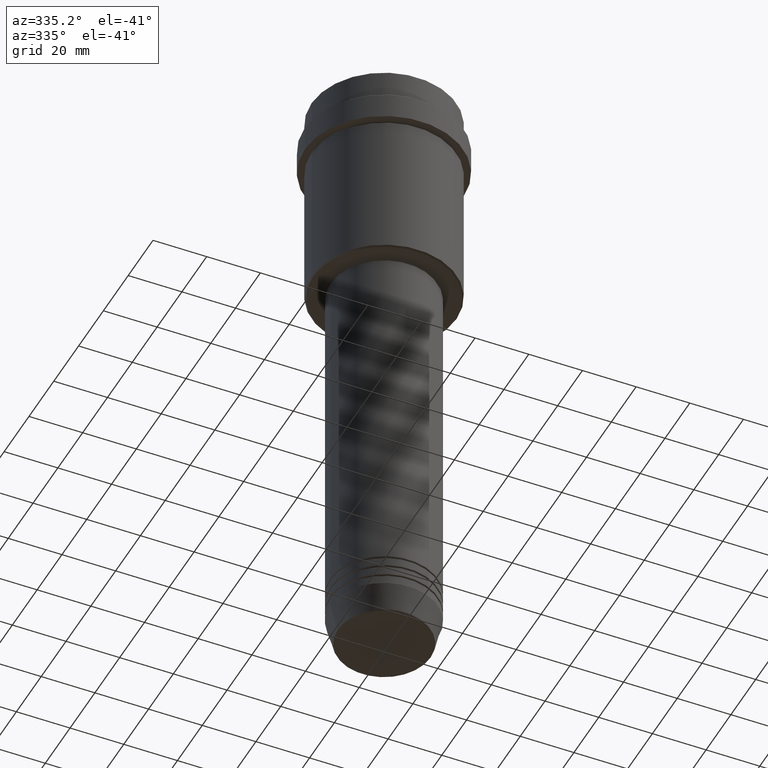
[diagram: clean part render]
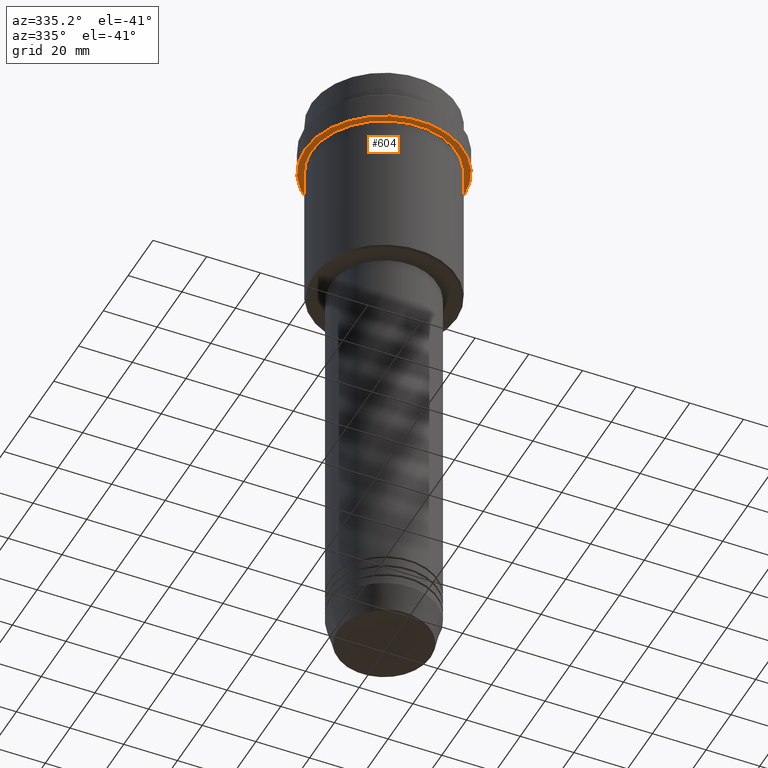
[diagram: same view with one face highlighted and labeled with its STEP entity id]
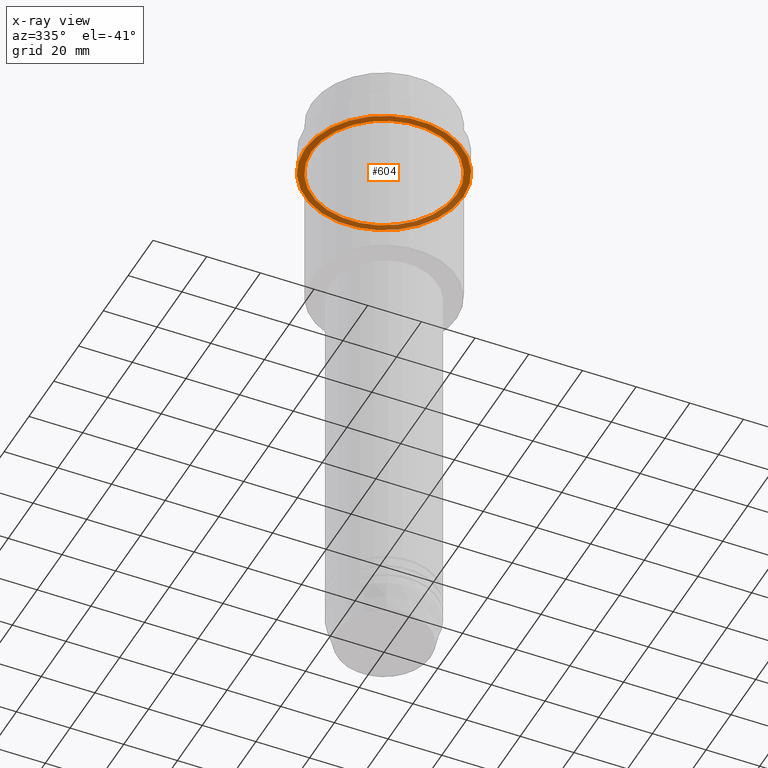
[diagram: x-ray of the same camera — body ghosted, the highlighted face saturated]
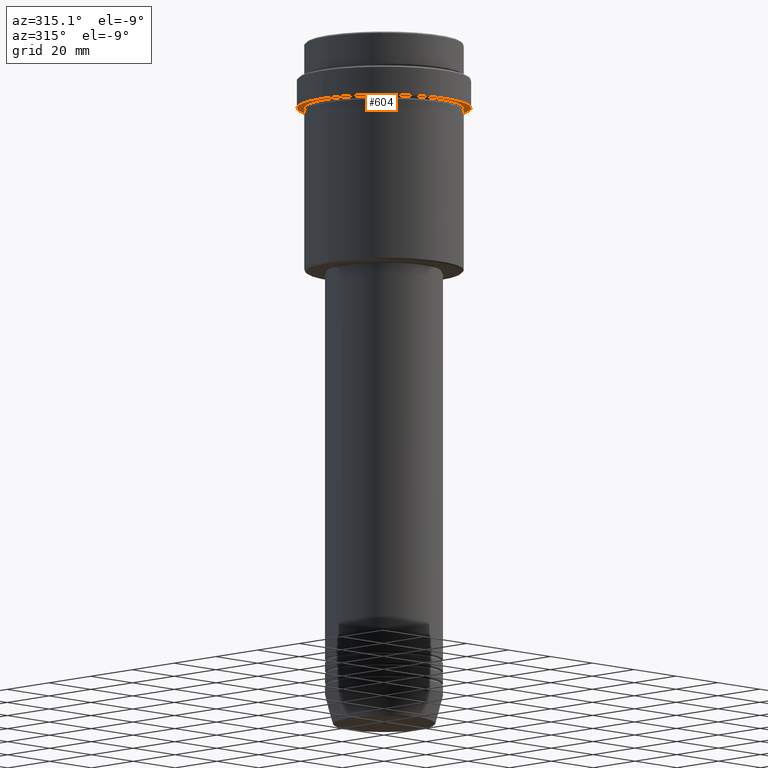
[diagram: same view with one face highlighted and labeled with its STEP entity id]
A machine part, auxiliary view. The second image highlights one B-rep face of the part: STEP entity #604.
The next image is the same camera in x-ray: the body ghosted, the highlighted face saturated — about 37% of this face is hidden behind the body in this view.
A second angle (auxiliary view) of the same face is appended — the face is thin or edge-on in the first view.
In plain terms, the highlighted planar face has unit normal (0, 0, -1).
Its self-contained STEP definition (entity closure, byte-faithful):
#8 = AXIS2_PLACEMENT_3D ( 'NONE', #640, #1086, #1385 ) ;
#113 = AXIS2_PLACEMENT_3D ( 'NONE', #932, #291, #936 ) ;
#161 = CARTESIAN_POINT ( 'NONE',  ( 0.000000000000000000, 29.49999999999999645, -22.00000000000000711 ) ) ;
#237 = EDGE_CURVE ( 'NONE', #610, #980, #528, .T. ) ;
#252 = AXIS2_PLACEMENT_3D ( 'NONE', #768, #1325, #1116 ) ;
#258 = EDGE_LOOP ( 'NONE', ( #1084, #467 ) ) ;
#268 = DIRECTION ( 'NONE',  ( -1.000000000000000000, 0.000000000000000000, -0.000000000000000000 ) ) ;
#276 = PLANE ( 'NONE',  #1405 ) ;
#291 = DIRECTION ( 'NONE',  ( -0.000000000000000000, -0.000000000000000000, 1.000000000000000000 ) ) ;
#326 = VERTEX_POINT ( 'NONE', #547 ) ;
#382 = FACE_BOUND ( 'NONE', #258, .T. ) ;
#416 = EDGE_CURVE ( 'NONE', #980, #610, #1203, .T. ) ;
#450 = VERTEX_POINT ( 'NONE', #472 ) ;
#467 = ORIENTED_EDGE ( 'NONE', *, *, #416, .T. ) ;
#472 = CARTESIAN_POINT ( 'NONE',  ( -29.49999999999999645, 3.612708057484690815E-15, -22.00000000000000711 ) ) ;
#488 = ORIENTED_EDGE ( 'NONE', *, *, #1257, .F. ) ;
#528 = CIRCLE ( 'NONE', #113, 26.99999999999999645 ) ;
#547 = CARTESIAN_POINT ( 'NONE',  ( 29.49999999999999645, 0.000000000000000000, -22.00000000000000711 ) ) ;
#604 = ADVANCED_FACE ( 'NONE', ( #382, #805 ), #276, .T. ) ;
#610 = VERTEX_POINT ( 'NONE', #703 ) ;
#613 = ORIENTED_EDGE ( 'NONE', *, *, #787, .F. ) ;
#621 = AXIS2_PLACEMENT_3D ( 'NONE', #861, #751, #853 ) ;
#624 = CIRCLE ( 'NONE', #8, 29.49999999999999645 ) ;
#640 = CARTESIAN_POINT ( 'NONE',  ( 0.000000000000000000, 0.000000000000000000, -22.00000000000000711 ) ) ;
#692 = CIRCLE ( 'NONE', #621, 29.49999999999999645 ) ;
#703 = CARTESIAN_POINT ( 'NONE',  ( -26.99999999999999645, 0.000000000000000000, -22.00000000000000711 ) ) ;
#751 = DIRECTION ( 'NONE',  ( -0.000000000000000000, -0.000000000000000000, 1.000000000000000000 ) ) ;
#768 = CARTESIAN_POINT ( 'NONE',  ( 0.000000000000000000, 0.000000000000000000, -22.00000000000000711 ) ) ;
#787 = EDGE_CURVE ( 'NONE', #450, #326, #692, .T. ) ;
#805 = FACE_OUTER_BOUND ( 'NONE', #1369, .T. ) ;
#853 = DIRECTION ( 'NONE',  ( 1.000000000000000000, 0.000000000000000000, 0.000000000000000000 ) ) ;
#861 = CARTESIAN_POINT ( 'NONE',  ( 0.000000000000000000, 0.000000000000000000, -22.00000000000000711 ) ) ;
#932 = CARTESIAN_POINT ( 'NONE',  ( 0.000000000000000000, 0.000000000000000000, -22.00000000000000711 ) ) ;
#936 = DIRECTION ( 'NONE',  ( -1.000000000000000000, 0.000000000000000000, 0.000000000000000000 ) ) ;
#980 = VERTEX_POINT ( 'NONE', #1151 ) ;
#1067 = DIRECTION ( 'NONE',  ( 0.000000000000000000, 0.000000000000000000, -1.000000000000000000 ) ) ;
#1084 = ORIENTED_EDGE ( 'NONE', *, *, #237, .T. ) ;
#1086 = DIRECTION ( 'NONE',  ( -0.000000000000000000, -0.000000000000000000, 1.000000000000000000 ) ) ;
#1116 = DIRECTION ( 'NONE',  ( -1.000000000000000000, 0.000000000000000000, 0.000000000000000000 ) ) ;
#1151 = CARTESIAN_POINT ( 'NONE',  ( 26.99999999999999645, 3.306546357697853339E-15, -22.00000000000000711 ) ) ;
#1203 = CIRCLE ( 'NONE', #252, 26.99999999999999645 ) ;
#1257 = EDGE_CURVE ( 'NONE', #326, #450, #624, .T. ) ;
#1325 = DIRECTION ( 'NONE',  ( -0.000000000000000000, -0.000000000000000000, 1.000000000000000000 ) ) ;
#1369 = EDGE_LOOP ( 'NONE', ( #488, #613 ) ) ;
#1385 = DIRECTION ( 'NONE',  ( 1.000000000000000000, 0.000000000000000000, 0.000000000000000000 ) ) ;
#1405 = AXIS2_PLACEMENT_3D ( 'NONE', #161, #1067, #268 ) ;